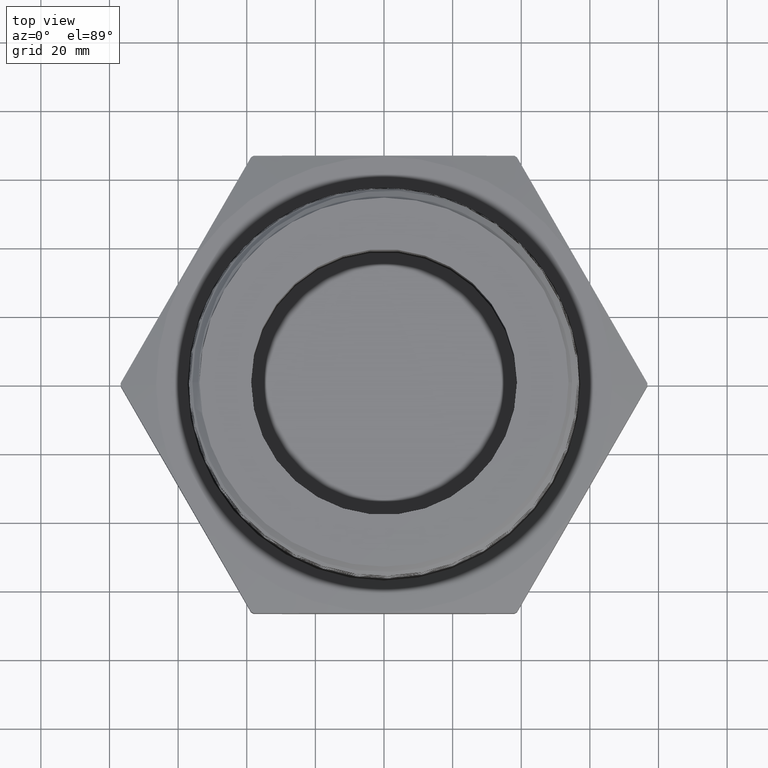
[diagram: clean part render]
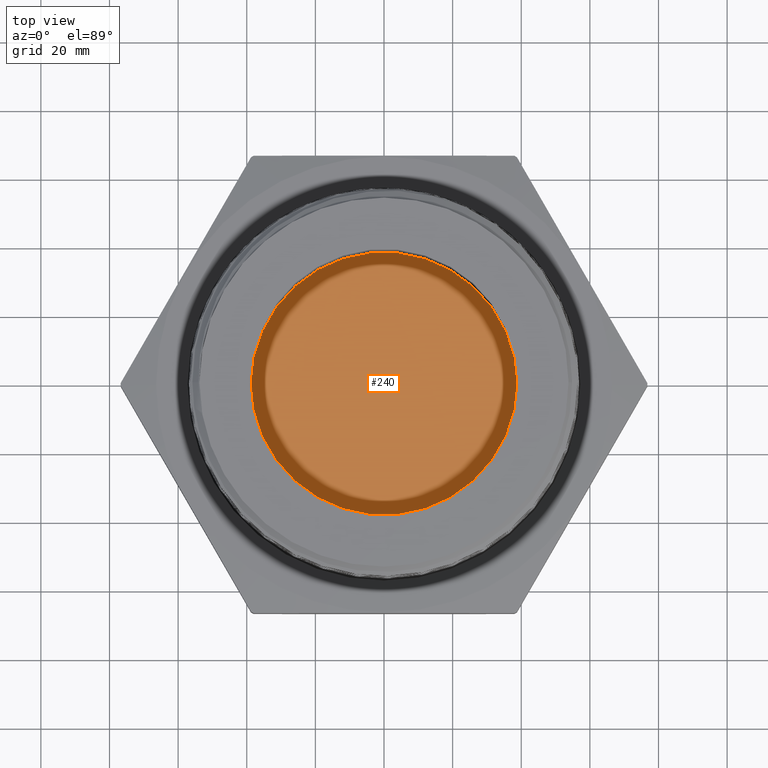
[diagram: same view with one face highlighted and labeled with its STEP entity id]
A machine part, top view. The second image highlights one B-rep face of the part: STEP entity #240.
In plain terms, the highlighted planar face has unit normal (0, 0, -1).
Its self-contained STEP definition (entity closure, byte-faithful):
#142 = VERTEX_POINT ( 'NONE', #358 ) ;
#240 = ADVANCED_FACE ( 'NONE', ( #3488 ), #1743, .F. ) ;
#358 = CARTESIAN_POINT ( 'NONE',  ( 1.524999999999999900, 1.867586368699713600E-016, 0.1600000000000000600 ) ) ;
#1743 = PLANE ( 'NONE',  #6236 ) ;
#1752 = CARTESIAN_POINT ( 'NONE',  ( -3.540212176806154500E-018, 0.0000000000000000000, 0.1600000000000000600 ) ) ;
#1753 = DIRECTION ( 'NONE',  ( 0.0000000000000000000, 0.0000000000000000000, -1.000000000000000000 ) ) ;
#1754 = DIRECTION ( 'NONE',  ( -1.000000000000000000, 0.0000000000000000000, -0.0000000000000000000 ) ) ;
#1933 = CARTESIAN_POINT ( 'NONE',  ( -1.524999999999999900, 0.0000000000000000000, 0.1600000000000000600 ) ) ;
#3488 = FACE_OUTER_BOUND ( 'NONE', #6551, .T. ) ;
#4270 = CARTESIAN_POINT ( 'NONE',  ( -3.540212176806154500E-018, 0.0000000000000000000, 0.1600000000000000600 ) ) ;
#4271 = DIRECTION ( 'NONE',  ( 0.0000000000000000000, 0.0000000000000000000, -1.000000000000000000 ) ) ;
#4272 = DIRECTION ( 'NONE',  ( -1.000000000000000000, 0.0000000000000000000, 0.0000000000000000000 ) ) ;
#4277 = CARTESIAN_POINT ( 'NONE',  ( -3.540212176806154500E-018, 0.0000000000000000000, 0.1600000000000000600 ) ) ;
#4278 = DIRECTION ( 'NONE',  ( 0.0000000000000000000, 0.0000000000000000000, -1.000000000000000000 ) ) ;
#4279 = DIRECTION ( 'NONE',  ( -1.000000000000000000, 0.0000000000000000000, 0.0000000000000000000 ) ) ;
#6236 = AXIS2_PLACEMENT_3D ( 'NONE', #1752, #1753, #1754 ) ;
#6320 = AXIS2_PLACEMENT_3D ( 'NONE', #4270, #4271, #4272 ) ;
#6322 = AXIS2_PLACEMENT_3D ( 'NONE', #4277, #4278, #4279 ) ;
#6402 = VERTEX_POINT ( 'NONE', #1933 ) ;
#6487 = ORIENTED_EDGE ( 'NONE', *, *, #7551, .F. ) ;
#6488 = ORIENTED_EDGE ( 'NONE', *, *, #7554, .F. ) ;
#6551 = EDGE_LOOP ( 'NONE', ( #6487, #6488 ) ) ;
#7365 = CIRCLE ( 'NONE', #6320, 1.524999999999999900 ) ;
#7399 = CIRCLE ( 'NONE', #6322, 1.524999999999999900 ) ;
#7551 = EDGE_CURVE ( 'NONE', #6402, #142, #7365, .T. ) ;
#7554 = EDGE_CURVE ( 'NONE', #142, #6402, #7399, .T. ) ;